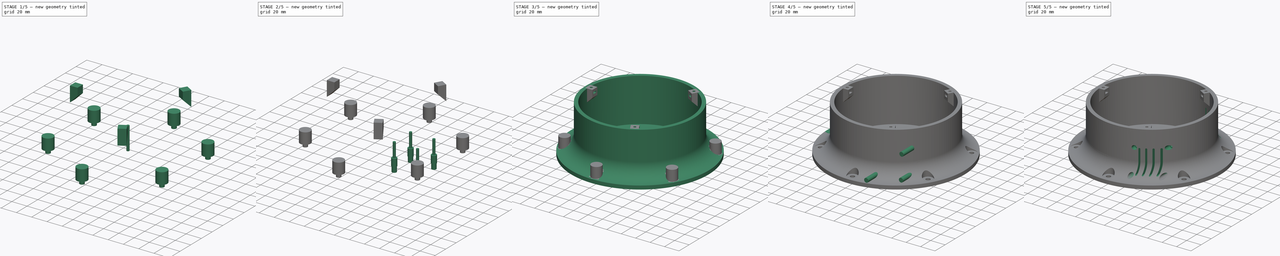
[diagram: build sequence overview — one tinted view per stage of 5, left to right]
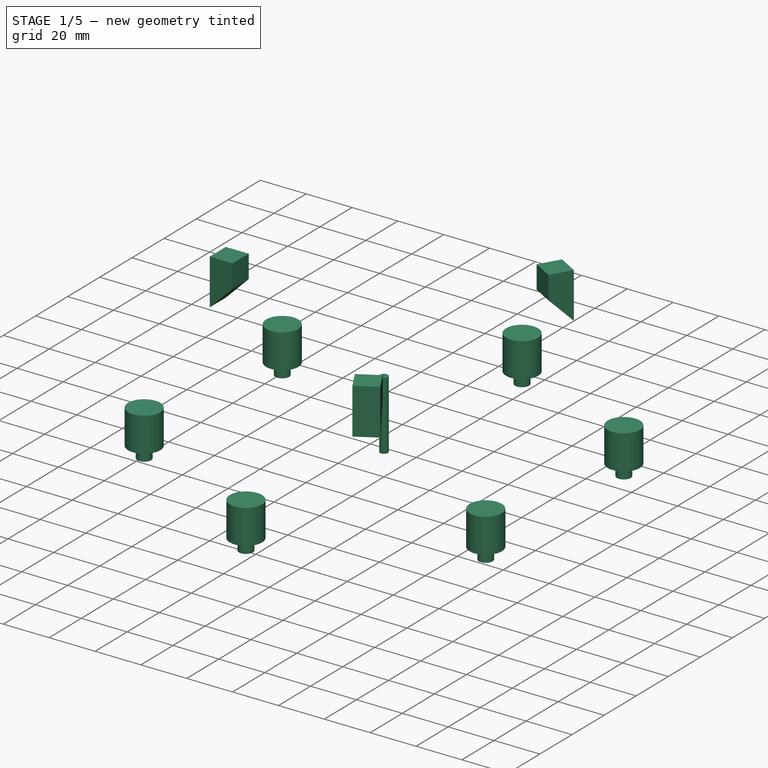
[diagram: stage 1 of 5 — iso view after this stage's code; geometry added in this stage tinted green]
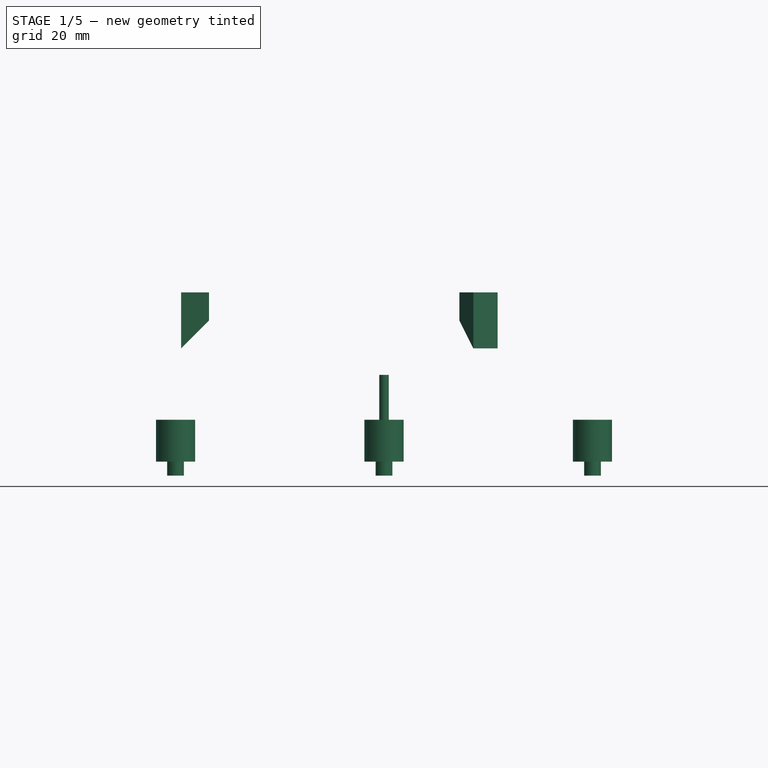
[diagram: stage 1 of 5 — front view after this stage's code; geometry added in this stage tinted green]
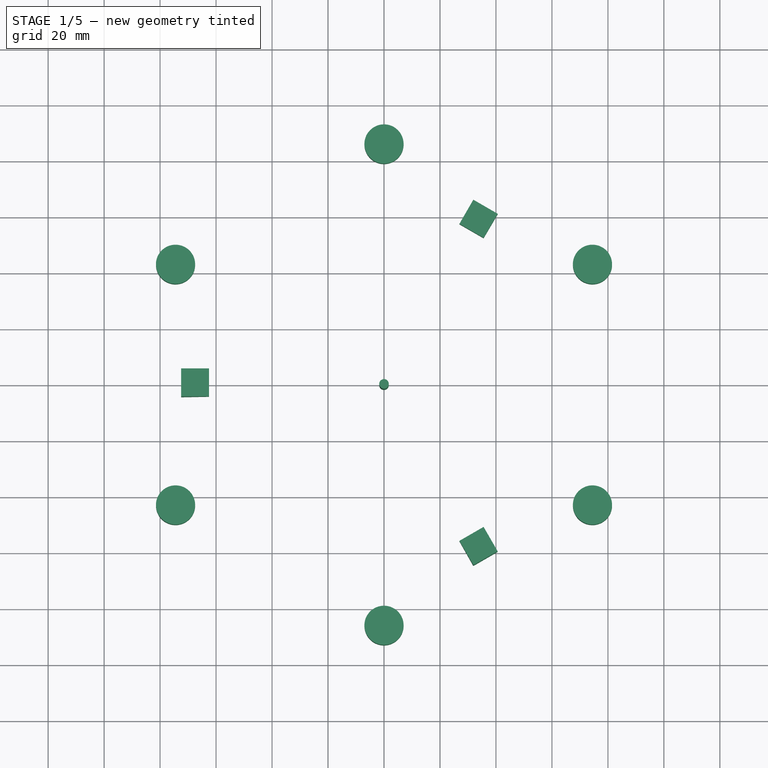
[diagram: stage 1 of 5 — top view after this stage's code; geometry added in this stage tinted green]
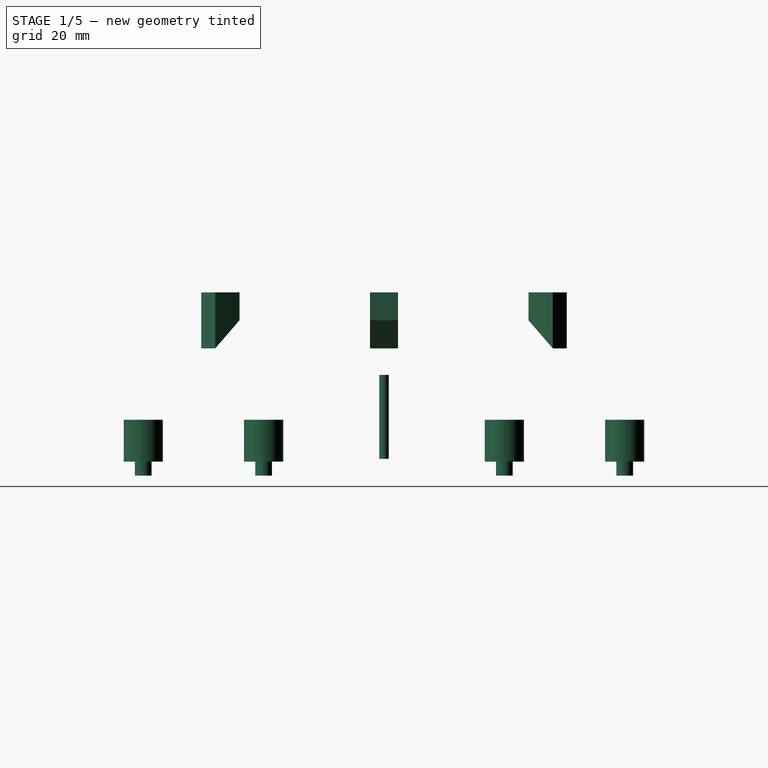
[diagram: stage 1 of 5 — right view after this stage's code; geometry added in this stage tinted green]
FCSTD DOCUMENT  (FreeCAD 0.16R6703 (Git))
Label: BaseBot190mm
License: All rights reserved
LicenseURL: http://en.wikipedia.org/wiki/All_rights_reserved
objects: Part::FeaturePython×23, Part::Cylinder×10, Part::MultiFuse×7, Sketcher::SketchObject×6, PartDesign::Pad×5, Part::Cut×5, PartDesign::Revolution×1, App::DocumentObjectGroup×1, Part::Box×1
note: 64 computed .brp shape members not serialized (recipe doc carries the construction recipe); baked Part::Feature solids carry a one-line shape summary decoded from their .brp

FEATURE [Part::Cylinder] Cylinder001  label="M3BoltBody"
  Angle = 360
  Height = 30
  Placement = pos=(0,0,6) rot=(0,0,1;0rad)
  Radius = 1.7
FEATURE [Sketcher::SketchObject] Sketch077
  Placement = pos=(0,0,0) rot=(1,0,0;1.5708rad)
  sketch-geometry (4):
    g0: LineSegment StartX=0 StartY=0 StartZ=0 EndX=0 EndY=20 EndZ=0
    g1: LineSegment StartX=0 StartY=20 StartZ=0 EndX=10 EndY=20 EndZ=0
    g2: LineSegment StartX=10 StartY=20 StartZ=0 EndX=10 EndY=10 EndZ=0
    g3: LineSegment StartX=10 StartY=10 StartZ=0 EndX=0 EndY=0 EndZ=0
  constraints (11):
    c: Coincident(g-1,g0)
    c: Vertical(g0)
    c: Coincident(g0,g1)
    c: Horizontal(g1)
    c: Coincident(g1,g2)
    c: Vertical(g2)
    c: Coincident(g2,g3)
    c: Coincident(g3,g0)
    c: DistanceX(g1) = 10
    c: DistanceY(g2) = -10
    c: Angle(g-1,g3) = 0.785398
FEATURE [PartDesign::Pad] Pad046  label="BaseTopFixMaster"
  Length = 10
  Length2 = 100
  Placement = pos=(0,0,0) rot=(1,0,0;1.5708rad)
  Sketch = -> Sketch077
  Type = 0
FEATURE [Part::FeaturePython] Clone396  label="Clone of BaseV2TopFixMaster"  # Draft clone (typed FeaturePython)
  Objects = -> [Pad046]
  Placement = pos=(-72.5,5,45.5) rot=(1,0,0;1.5708rad)
  Scale = (1,1,1)
FEATURE [Part::FeaturePython] Array022  # Draft array (typed FeaturePython)
  Angle = 360
  ArrayType = 1
  Axis = (0,0,1)
  Base = -> Clone396
  Center = (0,0,0)
  Fuse = false
  IntervalAxis = (0,0,0)
  IntervalX = (1,0,0)
  IntervalY = (0,1,0)
  IntervalZ = (0,0,0)
  NumberPolar = 3
  NumberX = 2
  NumberY = 2
  NumberZ = 1
FEATURE [Part::Cylinder] Cylinder1050  label="M6Bolt"
  Angle = 360
  Height = 15
  Radius = 3
FEATURE [Part::FeaturePython] Clone399  label="Clone of M6Bolt"  # Draft clone (typed FeaturePython)
  Objects = -> [Cylinder1050]
  Placement = pos=(0,86,0) rot=(0,0,1;0rad)
  Scale = (1,1,1)
FEATURE [Part::Cylinder] Cylinder1051  label="M6Washer"
  Angle = 360
  Height = 15
  Radius = 7
FEATURE [Part::FeaturePython] Clone400  label="Clone of M6Washer"  # Draft clone (typed FeaturePython)
  Objects = -> [Cylinder1051]
  Placement = pos=(0,86,5) rot=(0,0,1;0rad)
  Scale = (1,1,1)
FEATURE [Part::MultiFuse] Fusion148
  Shapes = -> [Clone399,Clone400]
FEATURE [Part::FeaturePython] Array024  # Draft array (typed FeaturePython)
  Angle = 360
  ArrayType = 1
  Axis = (0,0,1)
  Base = -> Fusion148
  Center = (0,0,0)
  Fuse = false
  IntervalAxis = (0,0,0)
  IntervalX = (1,0,0)
  IntervalY = (0,1,0)
  IntervalZ = (0,0,0)
  NumberPolar = 6
  NumberX = 2
  NumberY = 2
  NumberZ = 1
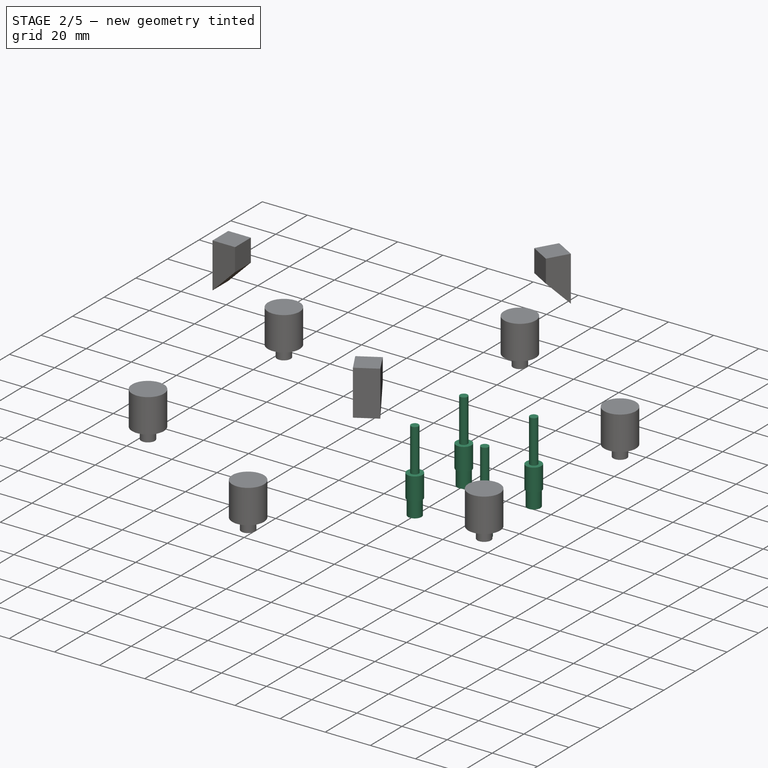
[diagram: stage 2 of 5 — iso view after this stage's code; geometry added in this stage tinted green]
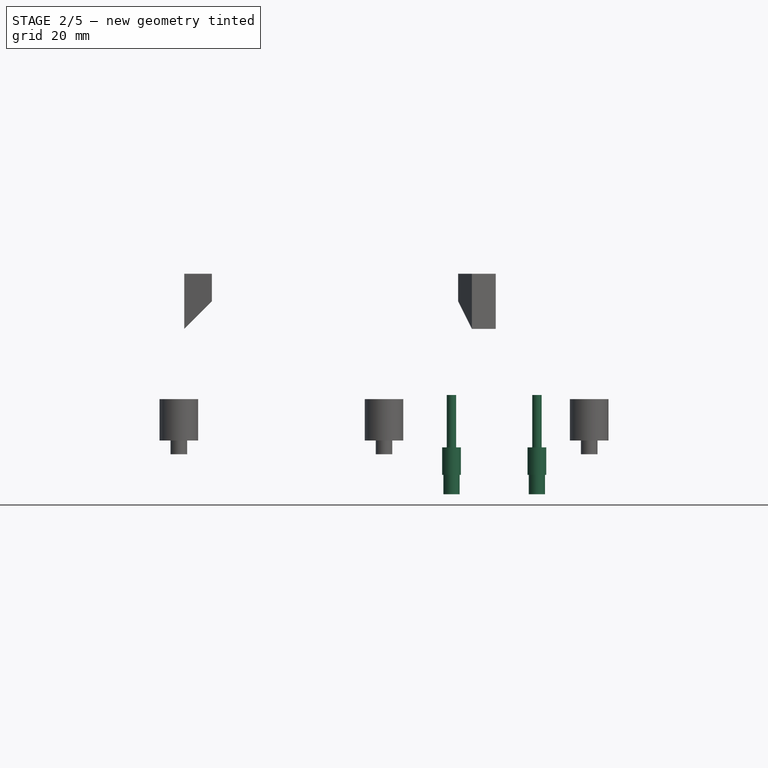
[diagram: stage 2 of 5 — front view after this stage's code; geometry added in this stage tinted green]
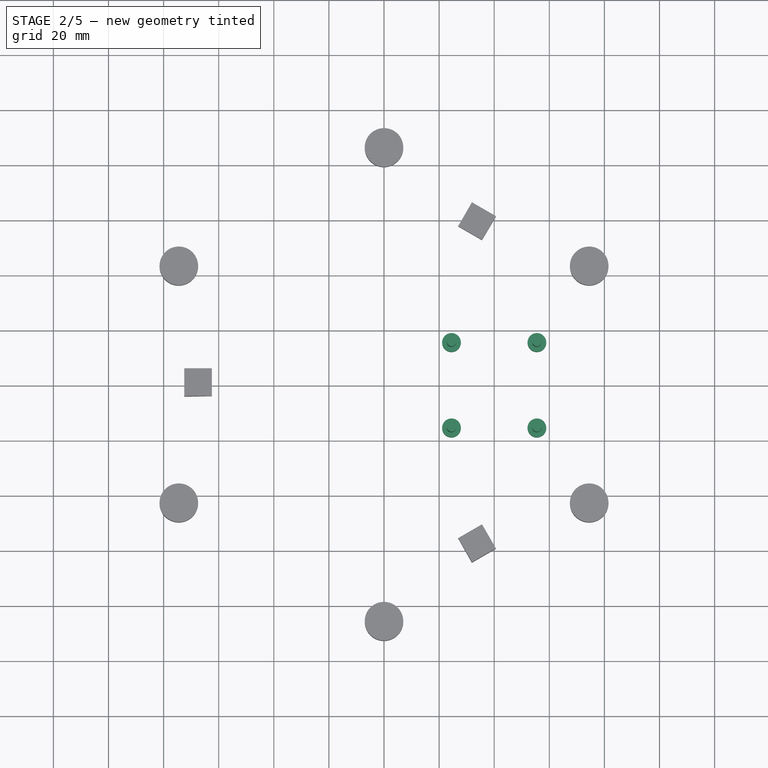
[diagram: stage 2 of 5 — top view after this stage's code; geometry added in this stage tinted green]
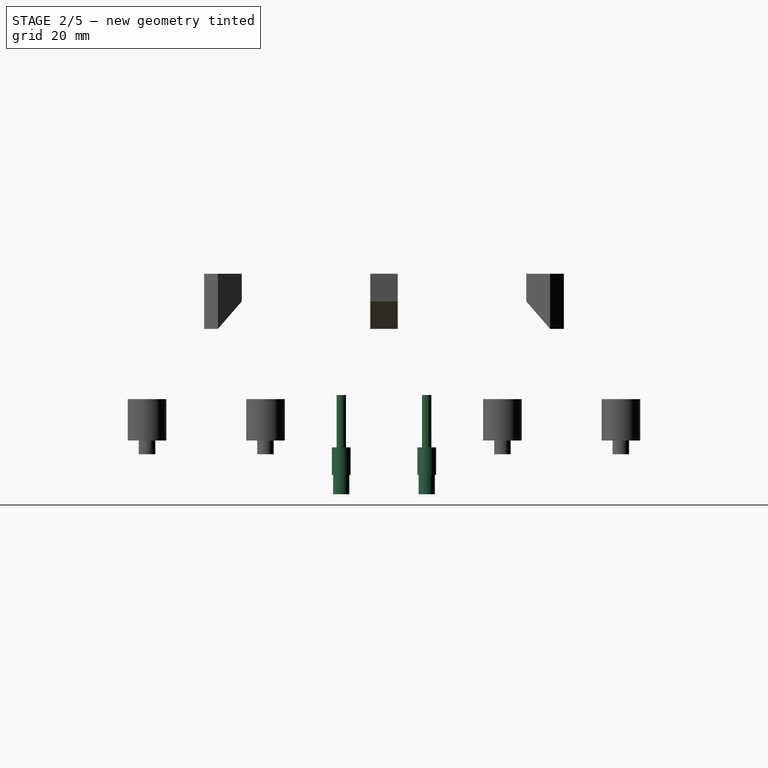
[diagram: stage 2 of 5 — right view after this stage's code; geometry added in this stage tinted green]
FEATURE [Part::Cylinder] Cylinder  label="M3BoltHead"
  Angle = 360
  Height = 7
  Radius = 2.95
FEATURE [Part::MultiFuse] Fusion  label="M3Bolt"
  Shapes = -> [Cylinder001,Cylinder]
FEATURE [Part::Cylinder] Cylinder1049  label="WasherM3"
  Angle = 360
  Height = 10
  Radius = 3.4
FEATURE [Part::FeaturePython] Clone384  label="Clone of WasherM3"  # Draft clone (typed FeaturePython)
  Objects = -> [Cylinder1049]
  Placement = pos=(55.5,15.5,-7.5) rot=(0,0,1;0rad)
  Scale = (1,1,1)
FEATURE [Part::FeaturePython] Clone385  label="Clone of WasherM004"  # Draft clone (typed FeaturePython)
  Objects = -> [Cylinder1049]
  Placement = pos=(55.5,-15.5,-7.5) rot=(0,0,1;0rad)
  Scale = (1,1,1)
FEATURE [Part::FeaturePython] Clone386  label="Clone of WasherM005"  # Draft clone (typed FeaturePython)
  Objects = -> [Cylinder1049]
  Placement = pos=(24.5,15.5,-7.5) rot=(0,0,1;0rad)
  Scale = (1,1,1)
FEATURE [Part::FeaturePython] Clone387  label="Clone of WasherM006"  # Draft clone (typed FeaturePython)
  Objects = -> [Cylinder1049]
  Placement = pos=(24.5,-15.5,-7.5) rot=(0,0,1;0rad)
  Scale = (1,1,1)
FEATURE [Part::FeaturePython] Clone388  label="Clone of M3Bolt124"  # Draft clone (typed FeaturePython)
  Objects = -> [Fusion]
  Placement = pos=(24.5,-15.5,-14.5) rot=(0,0,1;0rad)
  Scale = (1,1,1)
FEATURE [Part::FeaturePython] Clone389  label="Clone of M3Bolt125"  # Draft clone (typed FeaturePython)
  Objects = -> [Fusion]
  Placement = pos=(24.5,15.5,-14.5) rot=(0,0,1;0rad)
  Scale = (1,1,1)
FEATURE [Part::FeaturePython] Clone390  label="Clone of M3Bolt126"  # Draft clone (typed FeaturePython)
  Objects = -> [Fusion]
  Placement = pos=(55.5,15.5,-14.5) rot=(0,0,1;0rad)
  Scale = (1,1,1)
FEATURE [Part::FeaturePython] Clone391  label="Clone of M3Bolt127"  # Draft clone (typed FeaturePython)
  Objects = -> [Fusion]
  Placement = pos=(55.5,-15.5,-14.5) rot=(0,0,1;0rad)
  Scale = (1,1,1)
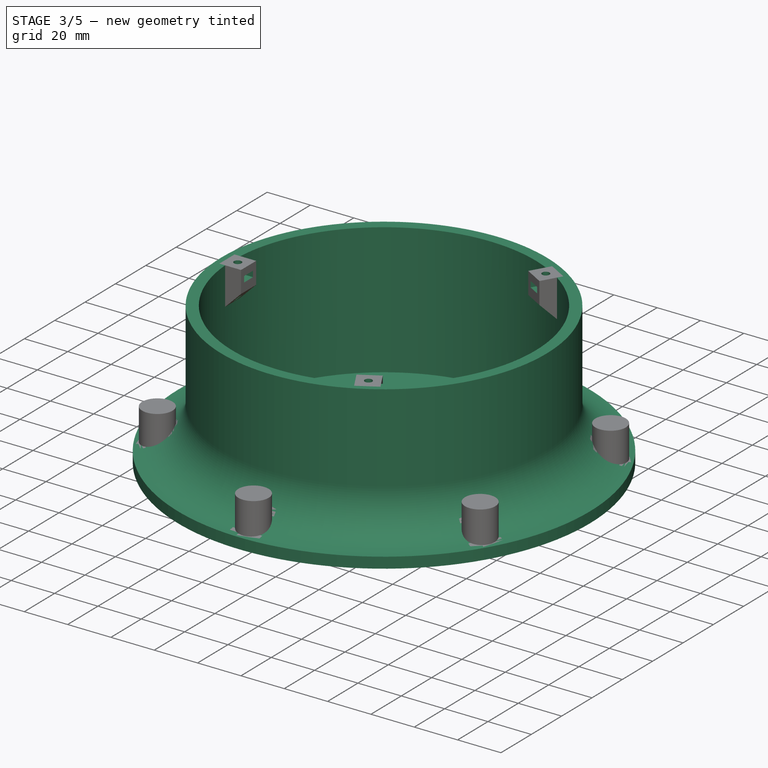
[diagram: stage 3 of 5 — iso view after this stage's code; geometry added in this stage tinted green]
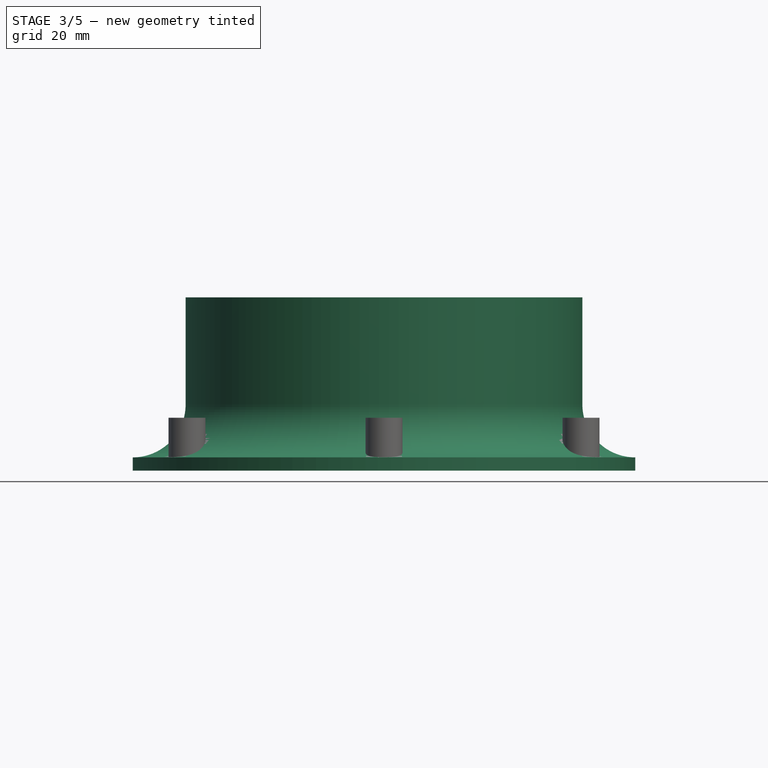
[diagram: stage 3 of 5 — front view after this stage's code; geometry added in this stage tinted green]
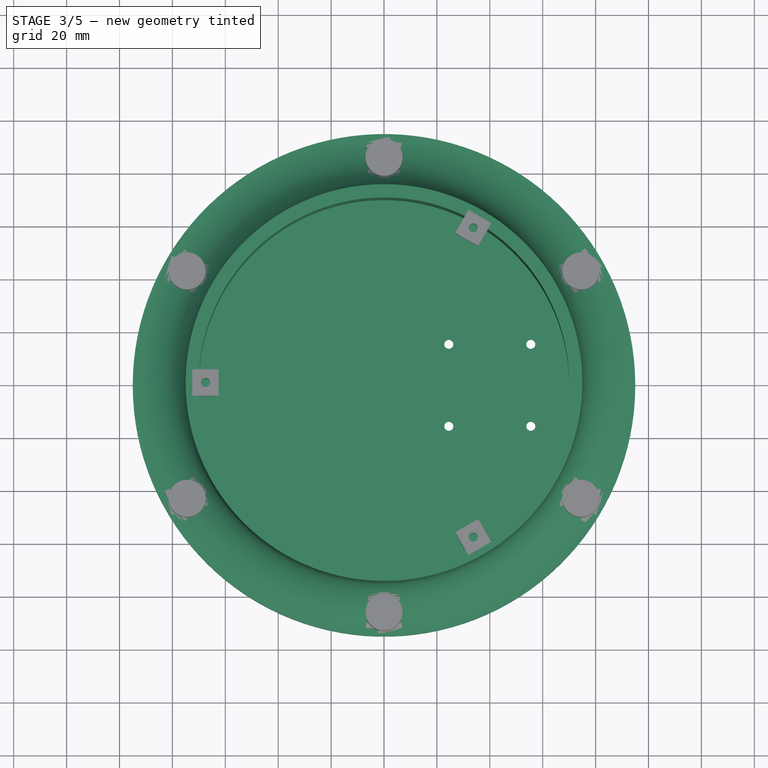
[diagram: stage 3 of 5 — top view after this stage's code; geometry added in this stage tinted green]
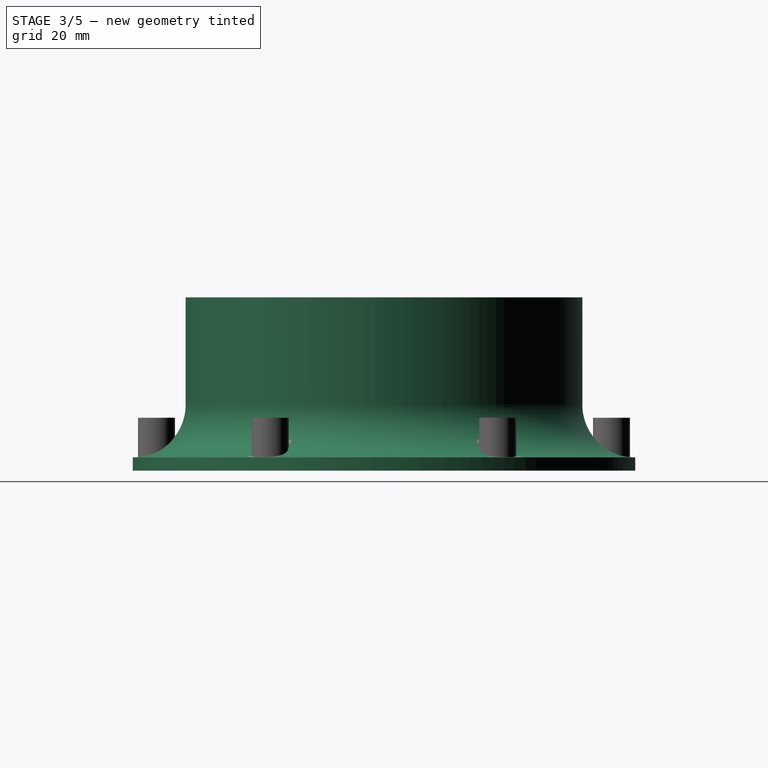
[diagram: stage 3 of 5 — right view after this stage's code; geometry added in this stage tinted green]
FEATURE [Sketcher::SketchObject] Sketch003  label="M3NutHousingSketch"
  sketch-geometry (5):
    g0: LineSegment StartX=0 StartY=0 StartZ=0 EndX=1.67432 EndY=2.9 EndZ=0
    g1: LineSegment StartX=1.67432 StartY=2.9 StartZ=0 EndX=21.6743 EndY=2.9 EndZ=0
    g2: LineSegment StartX=21.6743 StartY=2.9 StartZ=0 EndX=21.6743 EndY=-2.9 EndZ=0
    g3: LineSegment StartX=21.6743 StartY=-2.9 StartZ=0 EndX=1.67432 EndY=-2.9 EndZ=0
    g4: LineSegment StartX=1.67432 StartY=-2.9 StartZ=0 EndX=0 EndY=0 EndZ=0
  constraints (14):
    c: Coincident(g-1,g0)
    c: Coincident(g0,g1)
    c: Horizontal(g1)
    c: Coincident(g1,g2)
    c: Vertical(g2)
    c: Coincident(g2,g3)
    c: Horizontal(g3)
    c: Coincident(g3,g4)
    c: Coincident(g4,g0)
    c: Equal(g3,g1)
    c: Equal(g4,g0)
    c: DistanceY(g2) = -5.8
    c: Angle(g-1,g0) = 1.0472
    c: DistanceX(g3) = -20
FEATURE [PartDesign::Pad] Pad002  label="M3NutHousing"
  Length = 2.7
  Length2 = 100
  Sketch = -> Sketch003
  Type = 0
FEATURE [Sketcher::SketchObject] Sketch075
  Placement = pos=(0,0,0) rot=(1,0,0;1.5708rad)
  sketch-geometry (9):
    g0: LineSegment StartX=0 StartY=0 StartZ=0 EndX=95 EndY=0 EndZ=0
    g1: LineSegment StartX=0 StartY=0 StartZ=0 EndX=0 EndY=5 EndZ=0
    g2: LineSegment StartX=0 StartY=5 StartZ=0 EndX=70 EndY=5 EndZ=0
    g3: LineSegment StartX=70 StartY=5 StartZ=0 EndX=70 EndY=65.5 EndZ=0
    g4: LineSegment StartX=70 StartY=65.5 StartZ=0 EndX=75 EndY=65.5 EndZ=0
    g5: LineSegment StartX=75 StartY=65.5 StartZ=0 EndX=75 EndY=25.0001 EndZ=0
    g6: ArcOfCircle CenterX=95 CenterY=25 CenterZ=0 NormalX=0 NormalY=0 NormalZ=1 Radius=20 StartAngle=3.14159 EndAngle=4.71239
    g7: LineSegment StartX=95 StartY=0 StartZ=0 EndX=95 EndY=5 EndZ=0
    g8: LineSegment [constr] StartX=95 StartY=5 StartZ=0 EndX=95 EndY=25 EndZ=0
  constraints (27):
    c: Coincident(g0,g-1)
    c: Horizontal(g0)
    c: Coincident(g-1,g1)
    c: Vertical(g1)
    c: Coincident(g1,g2)
    c: Horizontal(g2)
    c: Coincident(g2,g3)
    c: Vertical(g3)
    c: Coincident(g3,g4)
    c: Horizontal(g4)
    c: Coincident(g4,g5)
    c: Vertical(g5)
    c: Coincident(g6,g5)
    c: DistanceX(g0) = 95
    c: DistanceX(g-1,g4) = 75
    c: Tangent(g5,g6)
    c: Coincident(g7,g0)
    c: Coincident(g7,g6)
    c: Vertical(g7)
    c: DistanceY(g7) = 5
    c: Equal(g1,g7)
    c: DistanceX(g3,g1) = -70
    c: Coincident(g8,g6)
    c: Vertical(g8)
    c: PointOnObject(g6,g8)
    c: DistanceY(g-1,g3) = 65.5
    c: Coincident(g6,g8)
FEATURE [PartDesign::Revolution] Revolution020
  Angle = 360
  Axis = (0,0,1)
  Base = (0,0,0)
  Placement = pos=(0,0,0) rot=(1,0,0;1.5708rad)
  ReferenceAxis = -> Sketch075 [V_Axis]
  Reversed = true
  Sketch = -> Sketch075
FEATURE [Part::MultiFuse] Fusion145
  Shapes = -> [Clone384,Clone385,Clone386,Clone387,Clone388,Clone389,Clone390,Clone391]
FEATURE [Part::Cut] Cut127  label="Cut171"
  Base = -> Revolution020
  Tool = -> Fusion145
FEATURE [Part::FeaturePython] Clone397  label="Clone of M3NutHousing028"  # Draft clone (typed FeaturePython)
  Objects = -> [Pad002]
  Placement = pos=(-71,0,59.5) rot=(0,0,1;0rad)
  Scale = (1,1,1)
FEATURE [Part::FeaturePython] Clone398  label="Clone of M3Bolt129"  # Draft clone (typed FeaturePython)
  Objects = -> [Fusion]
  Placement = pos=(-67.5,0,81.5) rot=(0,1,0;3.14159rad)
  Scale = (1,1,1)
FEATURE [Part::MultiFuse] Fusion146
  Shapes = -> [Clone397,Clone398]
FEATURE [Part::FeaturePython] Array023  # Draft array (typed FeaturePython)
  Angle = 360
  ArrayType = 1
  Axis = (0,0,1)
  Base = -> Fusion146
  Center = (0,0,0)
  Fuse = false
  IntervalAxis = (0,0,0)
  IntervalX = (1,0,0)
  IntervalY = (0,1,0)
  IntervalZ = (0,0,0)
  NumberPolar = 3
  NumberX = 2
  NumberY = 2
  NumberZ = 1
FEATURE [Part::MultiFuse] Fusion147
  Shapes = -> [Cut127,Array022]
FEATURE [Part::Cut] Cut129  label="Cut172"
  Base = -> Fusion147
  Tool = -> Array023
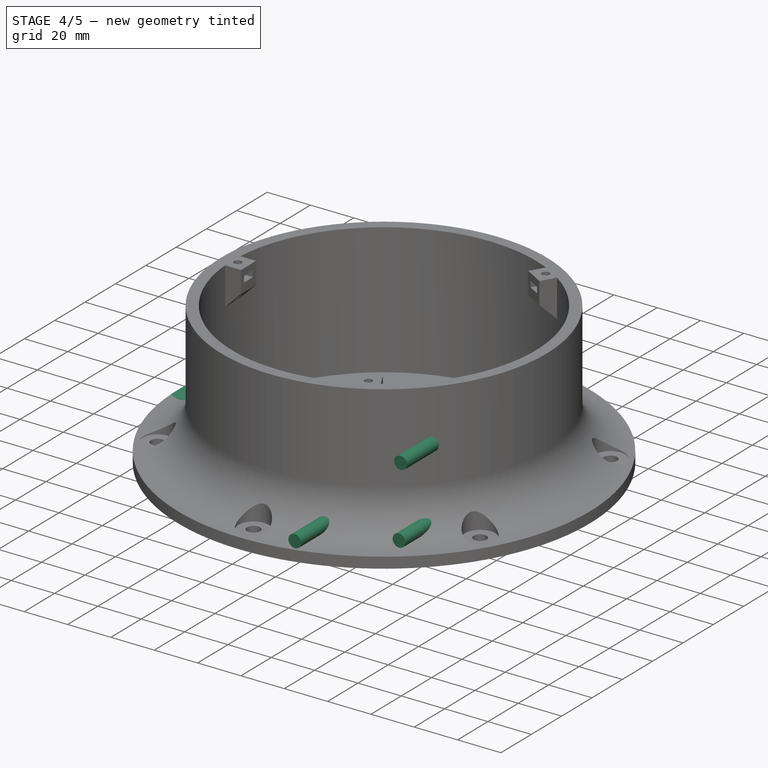
[diagram: stage 4 of 5 — iso view after this stage's code; geometry added in this stage tinted green]
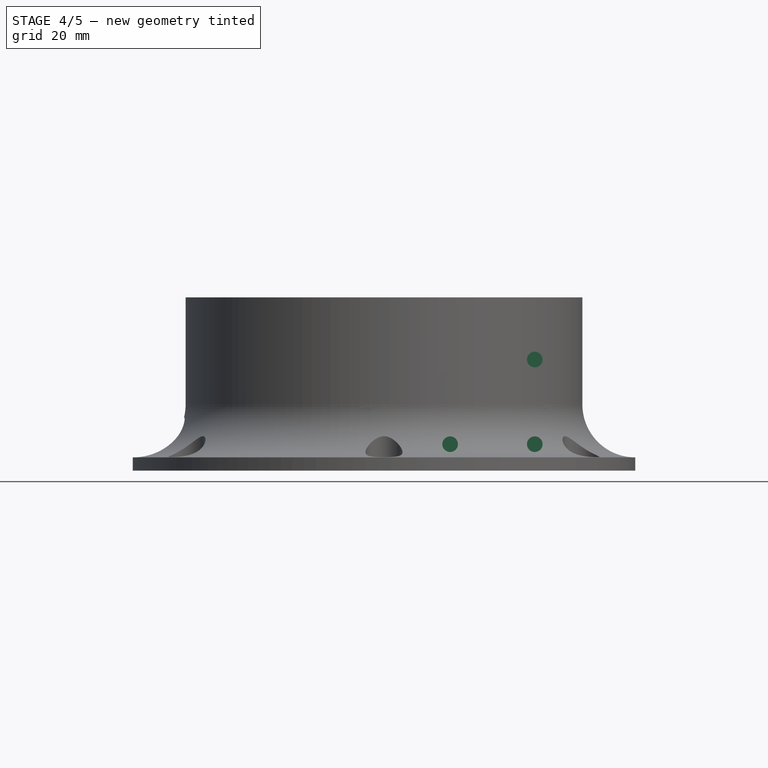
[diagram: stage 4 of 5 — front view after this stage's code; geometry added in this stage tinted green]
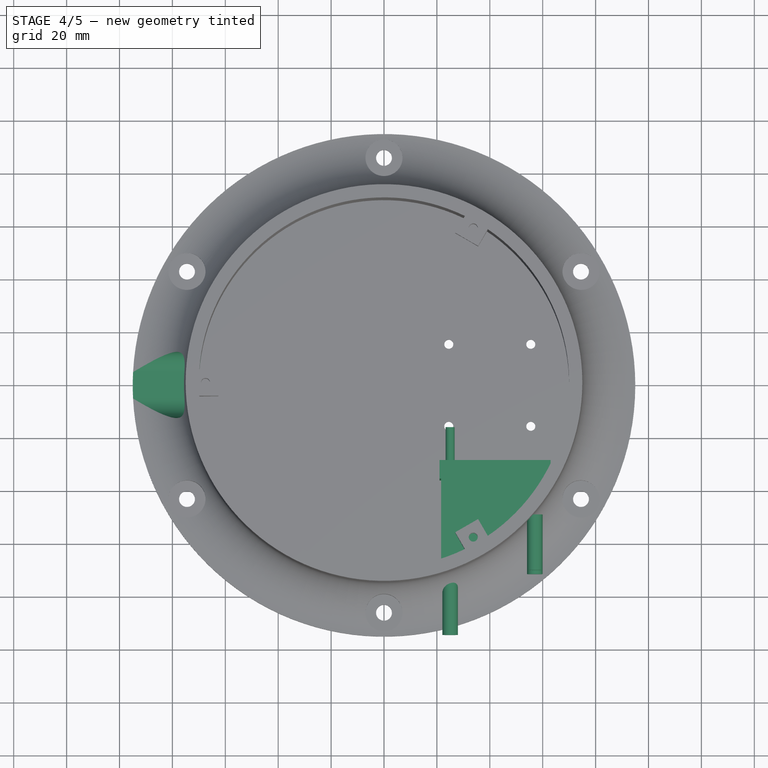
[diagram: stage 4 of 5 — top view after this stage's code; geometry added in this stage tinted green]
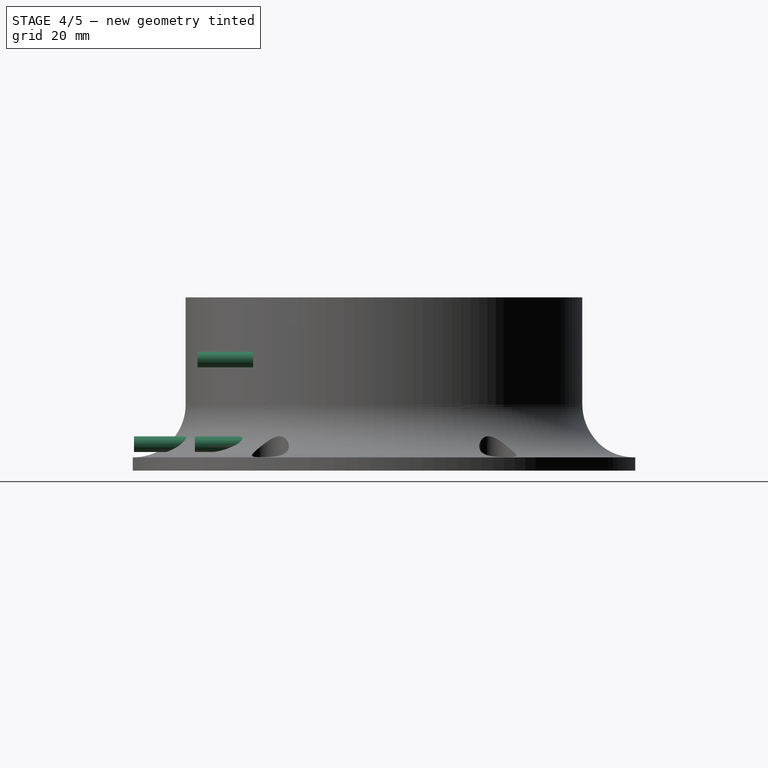
[diagram: stage 4 of 5 — right view after this stage's code; geometry added in this stage tinted green]
FEATURE [Sketcher::SketchObject] Sketch078
  Placement = pos=(-60,0,12.5) rot=(0.57735,-0.57735,-0.57735;2.0944rad)
  sketch-geometry (4):
    g0: ArcOfCircle CenterX=-5 CenterY=0 CenterZ=0 NormalX=0 NormalY=0 NormalZ=1 Radius=7.5 StartAngle=1.5708 EndAngle=4.71239
    g1: ArcOfCircle CenterX=5 CenterY=0 CenterZ=0 NormalX=0 NormalY=0 NormalZ=1 Radius=7.5 StartAngle=4.71239 EndAngle=7.85398
    g2: LineSegment StartX=-5 StartY=-7.5 StartZ=0 EndX=5 EndY=-7.5 EndZ=0
    g3: LineSegment StartX=-5 StartY=7.5 StartZ=0 EndX=5 EndY=7.5 EndZ=0
  constraints (10):
    c: Tangent(g0,g3) = 1.5708
    c: Tangent(g0,g2) = -1.5708
    c: Tangent(g2,g1) = -1.5708
    c: Tangent(g3,g1) = 1.5708
    c: Horizontal(g2)
    c: Equal(g0,g1)
    c: PointOnObject(g0,g-1)
    c: Radius(g0) = 7.5
    c: DistanceX(g0,g1) = 10
    c: DistanceX(g-1,g1) = 5
FEATURE [PartDesign::Pad] Pad047
  Length = 40
  Length2 = 100
  Placement = pos=(-60,0,12.5) rot=(0.57735,-0.57735,-0.57735;2.0944rad)
  Sketch = -> Sketch078
  Type = 0
FEATURE [Part::Cut] Cut130  label="Cut173"
  Base = -> Cut129
  Tool = -> Array024
FEATURE [Part::Box] Box  label="Cube"
  Height = 42
  Length = 42
  Placement = pos=(21,-36,5) rot=(0,0,1;0rad)
  Width = 7
FEATURE [Sketcher::SketchObject] Sketch
  sketch-geometry (3):
    g0: LineSegment StartX=21.5897 StartY=-35.8518 StartZ=0 EndX=21.5897 EndY=-69.7344 EndZ=0
    g1: ArcOfCircle CenterX=0 CenterY=0 CenterZ=0 NormalX=0 NormalY=0 NormalZ=1 Radius=73 StartAngle=5.01263 EndAngle=5.76981
    g2: LineSegment StartX=21.5897 StartY=-35.8518 StartZ=0 EndX=63.5897 EndY=-35.8518 EndZ=0
  constraints (9):
    c: Vertical(g0)
    c: Coincident(g1,g-1)
    c: Coincident(g1,g0)
    c: Coincident(g2,g0)
    c: Coincident(g2,g1)
    c: Horizontal(g2)
    c: Radius(g1) = 73
    c: DistanceY(g0,g0) = 33.8826
    c: DistanceX(g2,g2) = 42
FEATURE [PartDesign::Pad] Pad
  Length = 47
  Length2 = 100
  Sketch = -> Sketch
  Type = 0
FEATURE [Part::Cylinder] Cylinder1052  label="Cylinder"
  Angle = 360
  Height = 21
  Placement = pos=(25,-16.5,42) rot=(1,0,0;1.5708rad)
  Radius = 1.7
FEATURE [Part::Cylinder] Cylinder1053  label="Cylinder001"
  Angle = 360
  Height = 21
  Placement = pos=(57,-50.5,10) rot=(1,0,0;1.5708rad)
  Radius = 2.95
FEATURE [Part::Cylinder] Cylinder1054  label="Cylinder002"
  Angle = 360
  Height = 21
  Placement = pos=(25,-73.5,10) rot=(1,0,0;1.5708rad)
  Radius = 2.95
FEATURE [Part::Cylinder] Cylinder1055  label="Cylinder003"
  Angle = 360
  Height = 21
  Placement = pos=(57,-49.5,42) rot=(1,0,0;1.5708rad)
  Radius = 2.95
FEATURE [Part::Cylinder] Cylinder1056  label="Cylinder004"
  Angle = 360
  Height = 21
  Placement = pos=(25,-17.5,10) rot=(1,0,0;1.5708rad)
  Radius = 1.7
FEATURE [Part::Cut] Cut
  Base = -> Cut130
  Tool = -> Pad047
FEATURE [Part::MultiFuse] Fusion151
  Shapes = -> [Pad,Cut]
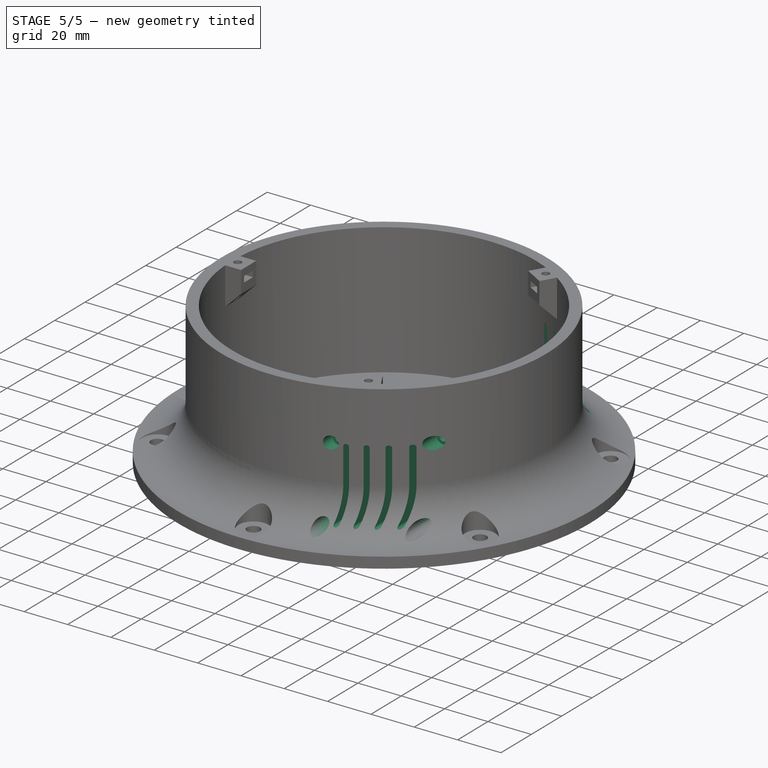
[diagram: stage 5 of 5 — iso view after this stage's code; geometry added in this stage tinted green]
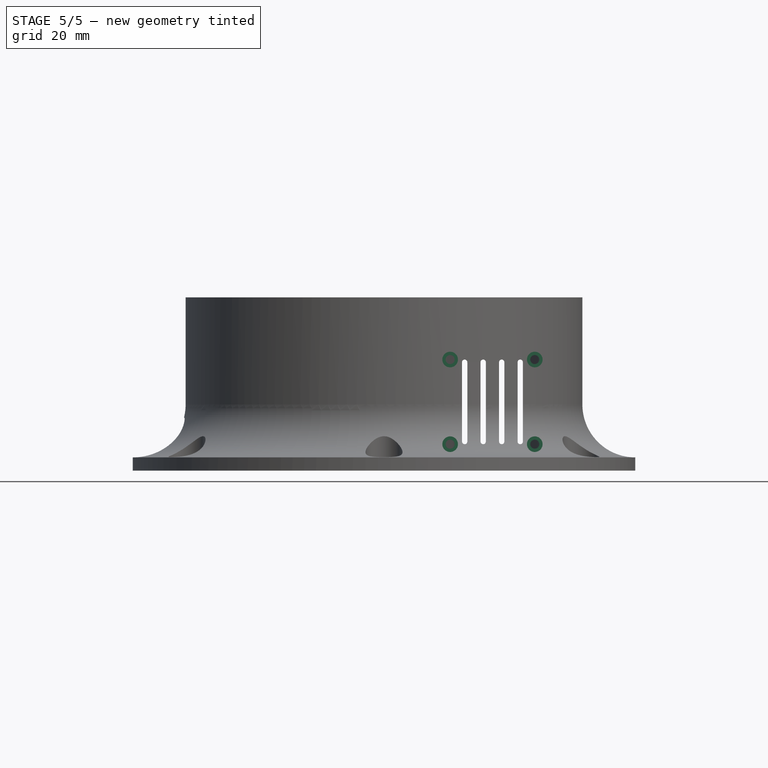
[diagram: stage 5 of 5 — front view after this stage's code; geometry added in this stage tinted green]
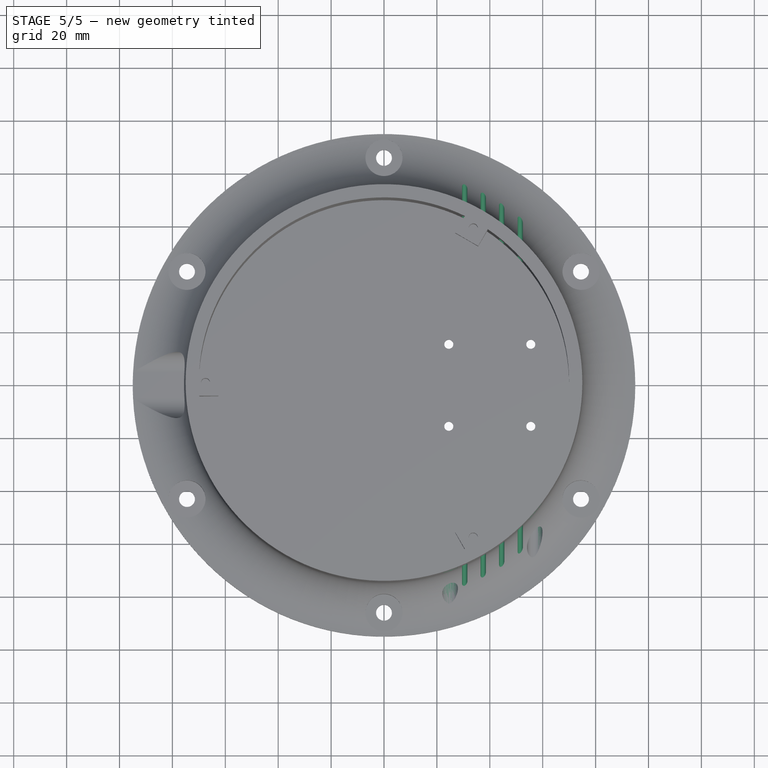
[diagram: stage 5 of 5 — top view after this stage's code; geometry added in this stage tinted green]
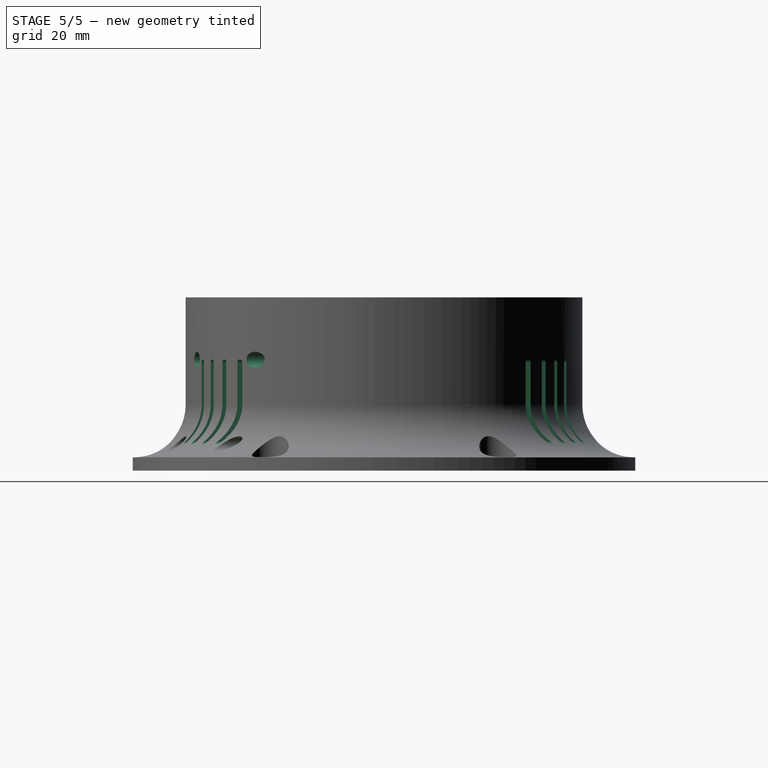
[diagram: stage 5 of 5 — right view after this stage's code; geometry added in this stage tinted green]
FEATURE [App::DocumentObjectGroup] Group  label="Master"
  Group = -> [Fusion,Pad002,Cylinder1049,Pad046,Cylinder1050,Cylinder1051]
FEATURE [Sketcher::SketchObject] Sketch082
  Placement = pos=(44.5,0,11) rot=(1,0,0;1.5708rad)
  sketch-geometry (4):
    g0: ArcOfCircle CenterX=8e-12 CenterY=30 CenterZ=0 NormalX=0 NormalY=0 NormalZ=1 Radius=1 StartAngle=0 EndAngle=3.14159
    g1: ArcOfCircle CenterX=0 CenterY=0 CenterZ=0 NormalX=0 NormalY=0 NormalZ=1 Radius=1 StartAngle=3.14159 EndAngle=6.28319
    g2: LineSegment StartX=-1 StartY=30 StartZ=0 EndX=-1 EndY=0 EndZ=0
    g3: LineSegment StartX=1 StartY=30 StartZ=0 EndX=1 EndY=0 EndZ=0
  constraints (9):
    c: Tangent(g0,g3) = 1.5708
    c: Tangent(g0,g2) = -1.5708
    c: Tangent(g2,g1) = -1.5708
    c: Tangent(g3,g1) = 1.5708
    c: Vertical(g2)
    c: Equal(g0,g1)
    c: DistanceY(g2,g2) = 30
    c: Radius(g0) = 1
    c: Coincident(g1,g-1)
FEATURE [PartDesign::Pad] Pad050
  Length = 200
  Length2 = 100
  Midplane = true
  Placement = pos=(44.5,0,11) rot=(1,0,0;1.5708rad)
  Sketch = -> Sketch082
  Type = 0
FEATURE [Part::FeaturePython] Clone  label="Clone of Pad050"  # Draft clone (typed FeaturePython)
  Objects = -> [Pad050]
  Placement = pos=(51.5,0,11) rot=(1,0,0;1.5708rad)
  Scale = (1,1,1)
FEATURE [Part::FeaturePython] Clone402  label="Clone of Pad052"  # Draft clone (typed FeaturePython)
  Objects = -> [Pad050]
  Placement = pos=(37.5,0,11) rot=(1,0,0;1.5708rad)
  Scale = (1,1,1)
FEATURE [Part::FeaturePython] Clone403  label="Clone of Pad053"  # Draft clone (typed FeaturePython)
  Objects = -> [Pad050]
  Placement = pos=(30.5,0,11) rot=(1,0,0;1.5708rad)
  Scale = (1,1,1)
FEATURE [Part::FeaturePython] Clone444  label="Clone of M3Bolt130"  # Draft clone (typed FeaturePython)
  Objects = -> [Fusion]
  Placement = pos=(57,-50.5,10) rot=(-0.57735,0.57735,0.57735;2.0944rad)
  Scale = (1,1,1)
FEATURE [Part::FeaturePython] Clone445  label="Clone of M3Bolt131"  # Draft clone (typed FeaturePython)
  Objects = -> [Fusion]
  Placement = pos=(25,-73.5,10) rot=(-0.57735,0.57735,0.57735;2.0944rad)
  Scale = (1,1,1)
FEATURE [Part::FeaturePython] Clone446  label="Clone of M3Bolt132"  # Draft clone (typed FeaturePython)
  Objects = -> [Fusion]
  Placement = pos=(57,-49.5,42) rot=(-0.57735,0.57735,0.57735;2.0944rad)
  Scale = (1,1,1)
FEATURE [Part::FeaturePython] Clone447  label="Clone of M3Bolt133"  # Draft clone (typed FeaturePython)
  Objects = -> [Fusion]
  Placement = pos=(25,-72.5,42) rot=(-0.57735,0.57735,0.57735;2.0944rad)
  Scale = (1,1,1)
FEATURE [Part::MultiFuse] Fusion150
  Shapes = -> [Pad050,Clone,Clone402,Clone403,Clone444,Clone445,Clone446,Clone447,Box,Cylinder1052,Cylinder1053,Cylinder1054,Cylinder1055,Cylinder1056]
FEATURE [Part::Cut] Cut131  label="BaseBotSmall"
  Base = -> Fusion151
  Tool = -> Fusion150
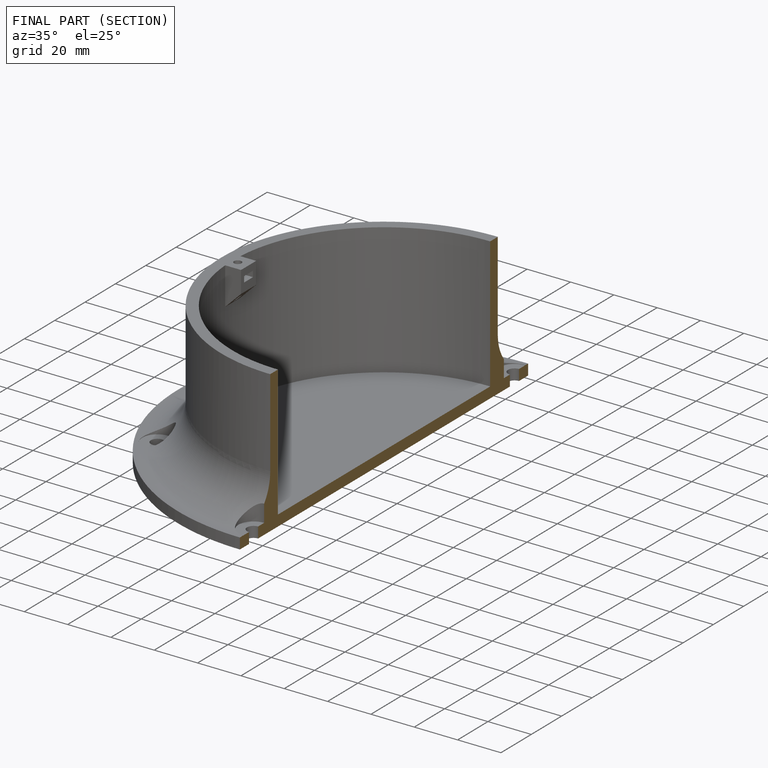
[diagram: finished part — half-section view (interior)]
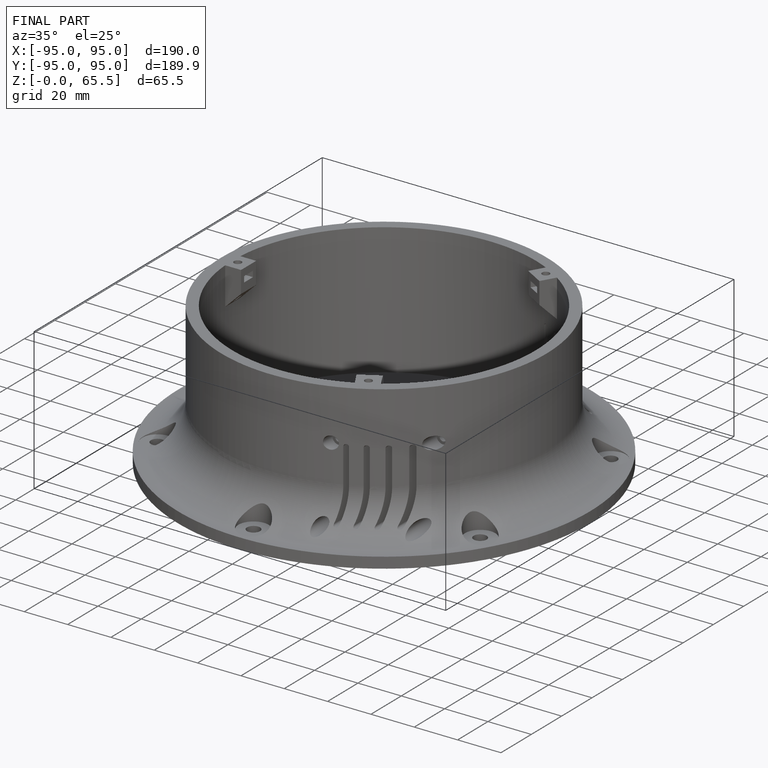
[diagram: finished part — iso view with bounding-box wireframe]
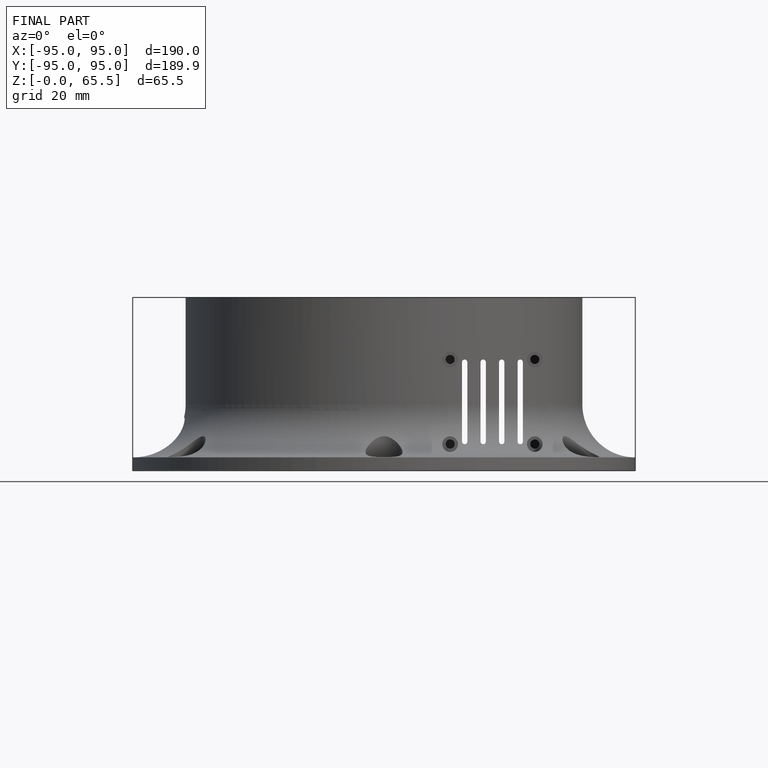
[diagram: finished part — front view with bounding-box wireframe]
